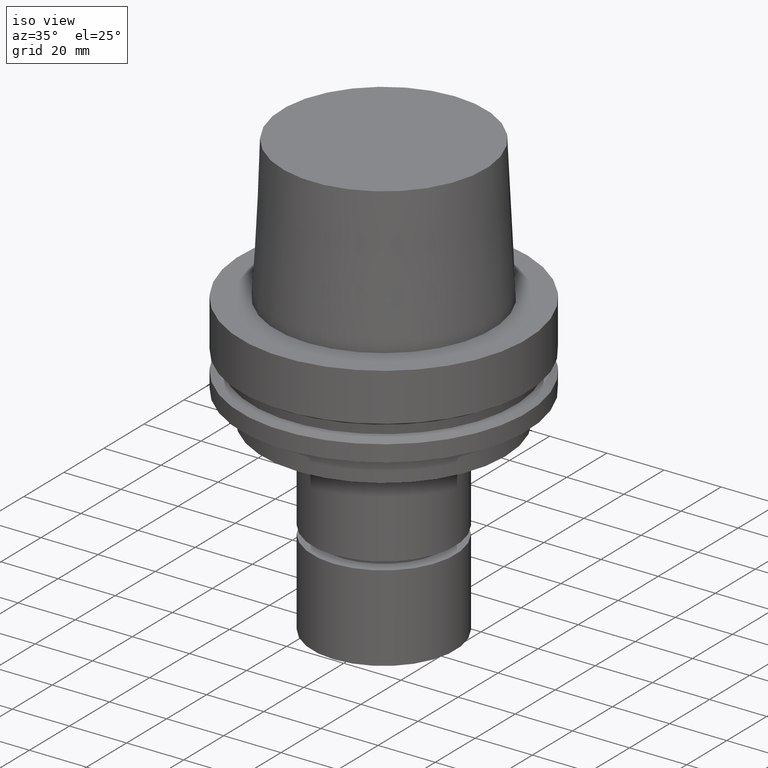
[diagram: clean part render]
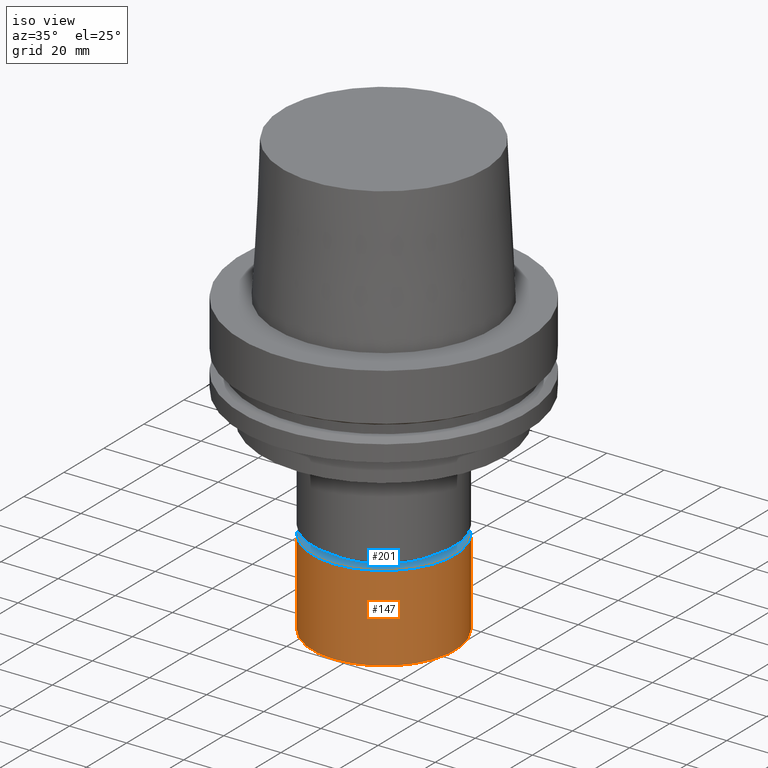
[diagram: same view with the hole feature highlighted: cylindrical wall and planar end face, labeled with their STEP entity ids]
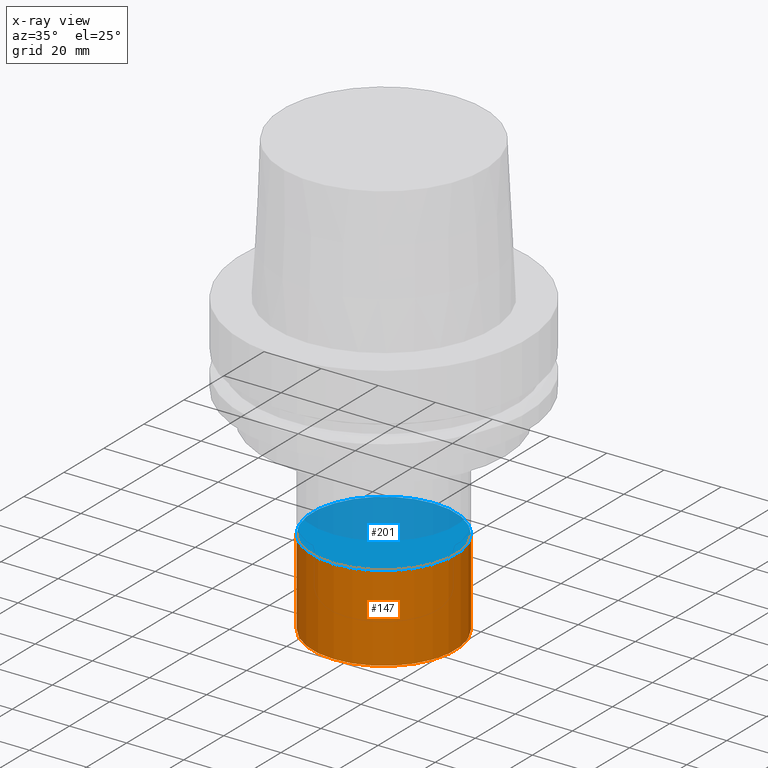
[diagram: x-ray of the same camera — body ghosted, the hole faces saturated]
A machine part, iso view. The highlighted faces form one hole feature of diameter 50 mm: the cylindrical wall (entity #147, orange) and its adjacent planar end face (entity #201, blue) — they share a circular edge in the B-rep.
The next image is the same camera in x-ray (body ghosted, the hole faces saturated) — the bore reads through the body.
Wall:
#147=ADVANCED_FACE('Unnamed[1]',(#322,#323),#324,.T.);
#149=EDGE_CURVE('Unnamed[1]',#326,#326,#327,.T.);
#160=EDGE_CURVE('Unnamed[1]',#343,#343,#344,.T.);
#322=FACE_BOUND('',#545,.T.);
#323=FACE_BOUND('',#546,.T.);
#324=CYLINDRICAL_SURFACE('',#547,25.0);
#326=VERTEX_POINT('',#550);
#327=CIRCLE('',#551,25.0);
#343=VERTEX_POINT('',#572);
#344=CIRCLE('',#573,25.0);
#545=EDGE_LOOP('',(#764));
#546=EDGE_LOOP('',(#765));
#547=AXIS2_PLACEMENT_3D('',#766,#767,#768);
#550=CARTESIAN_POINT('',(4.5801790288111E-015,25.0,-74.8));
#551=AXIS2_PLACEMENT_3D('',#769,#770,#771);
#572=CARTESIAN_POINT('',(6.4293956955236E-015,25.0,-105.0));
#573=AXIS2_PLACEMENT_3D('',#787,#788,#789);
#764=ORIENTED_EDGE('',*,*,#160,.F.);
#765=ORIENTED_EDGE('',*,*,#149,.T.);
#766=CARTESIAN_POINT('',(5.50478736216735E-015,1.10095747243347E-014,-89.9));
#767=DIRECTION('',(6.12323399573677E-017,1.22464679914735E-016,-1.0));
#768=DIRECTION('',(-1.23259516440783E-032,1.0,1.22464679914735E-016));
#769=CARTESIAN_POINT('',(4.5801790288111E-015,9.1603580576222E-015,-74.8));
#770=DIRECTION('',(6.12323399573677E-017,1.22464679914735E-016,-1.0));
#771=DIRECTION('',(-1.23259516440783E-032,1.0,1.22464679914735E-016));
#787=CARTESIAN_POINT('',(6.4293956955236E-015,1.28587913910472E-014,-105.0));
#788=DIRECTION('',(6.12323399573677E-017,1.22464679914735E-016,-1.0));
#789=DIRECTION('',(-1.23259516440783E-032,1.0,1.22464679914735E-016));
End face:
#149=EDGE_CURVE('Unnamed[1]',#326,#326,#327,.T.);
#201=ADVANCED_FACE('Unnamed[1]',(#407),#408,.T.);
#326=VERTEX_POINT('',#550);
#327=CIRCLE('',#551,25.0);
#407=FACE_OUTER_BOUND('',#652,.T.);
#408=PLANE('',#653);
#550=CARTESIAN_POINT('',(4.5801790288111E-015,25.0,-74.8));
#551=AXIS2_PLACEMENT_3D('',#769,#770,#771);
#652=EDGE_LOOP('',(#859));
#653=AXIS2_PLACEMENT_3D('',#860,#861,#862);
#769=CARTESIAN_POINT('',(4.5801790288111E-015,9.1603580576222E-015,-74.8));
#770=DIRECTION('',(6.12323399573677E-017,1.22464679914735E-016,-1.0));
#771=DIRECTION('',(-1.23259516440783E-032,1.0,1.22464679914735E-016));
#859=ORIENTED_EDGE('',*,*,#149,.F.);
#860=CARTESIAN_POINT('',(4.5801790288111E-015,12.5,-74.8));
#861=DIRECTION('',(-6.12323399573677E-017,-1.22464679914735E-016,1.0));
#862=DIRECTION('',(1.23259516440783E-032,-1.0,-1.22464679914735E-016));